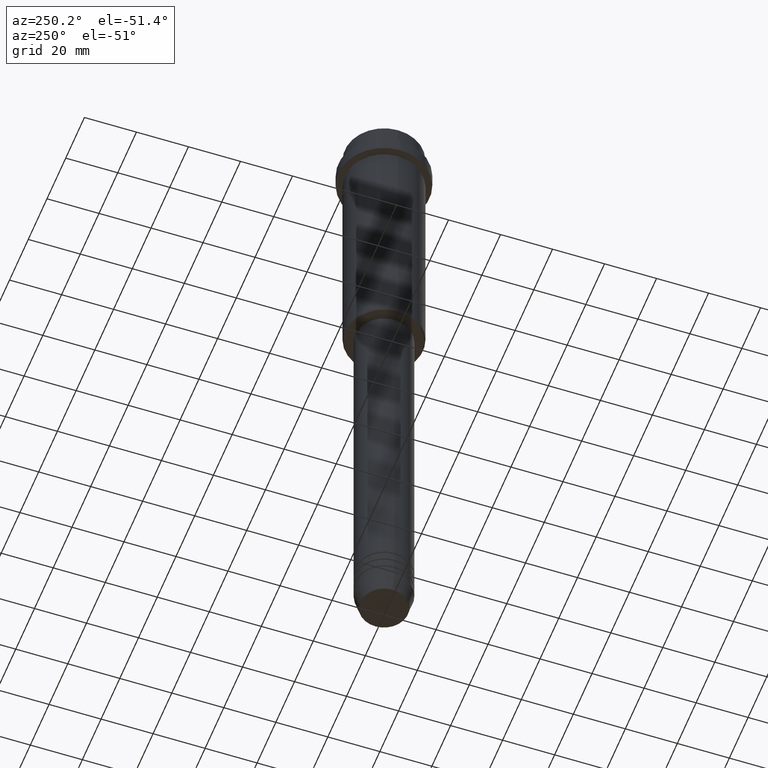
[diagram: clean part render]
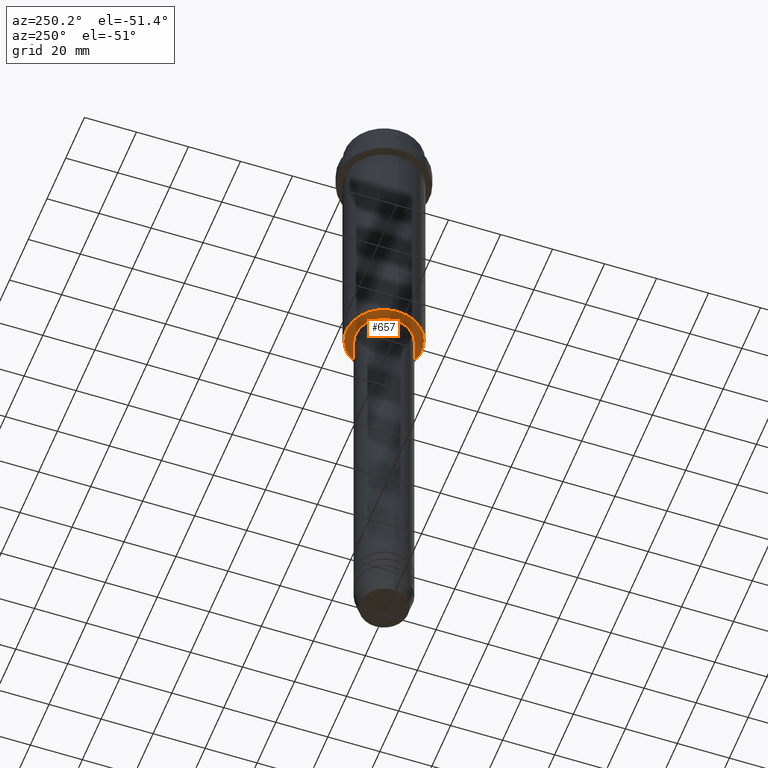
[diagram: same view with one face highlighted and labeled with its STEP entity id]
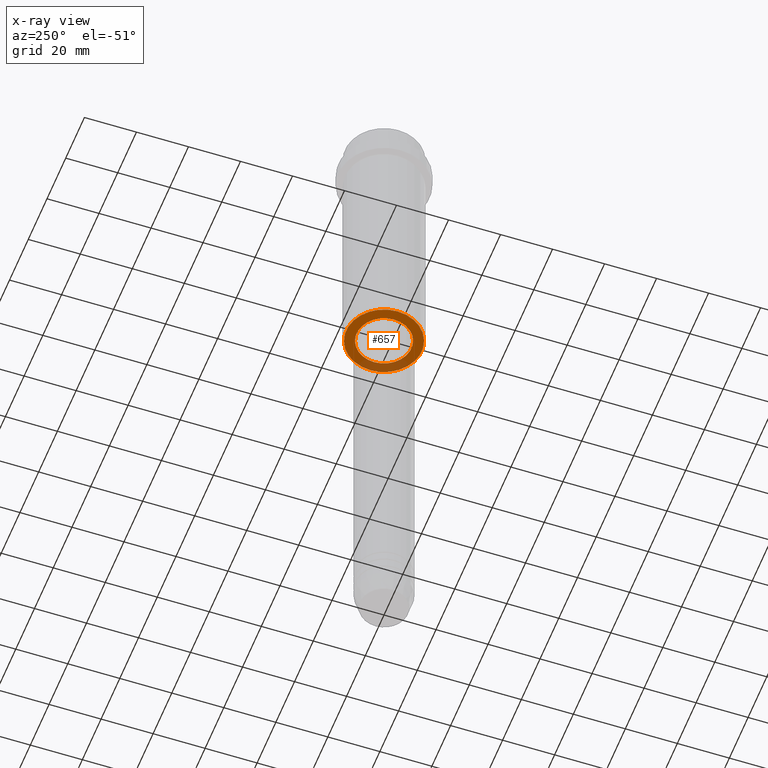
[diagram: x-ray of the same camera — body ghosted, the highlighted face saturated]
A machine part, auxiliary view. The second image highlights one B-rep face of the part: STEP entity #657.
The next image is the same camera in x-ray: the body ghosted, the highlighted face saturated — about 22% of this face is hidden behind the body in this view.
In plain terms, the highlighted planar face has unit normal (0, 0, -1).
Its self-contained STEP definition (entity closure, byte-faithful):
#4 = CARTESIAN_POINT ( 'NONE',  ( 0.000000000000000000, 15.00000000000000000, -105.0000000000000142 ) ) ;
#38 = DIRECTION ( 'NONE',  ( 1.000000000000000000, 0.000000000000000000, 0.000000000000000000 ) ) ;
#80 = CARTESIAN_POINT ( 'NONE',  ( 0.000000000000000000, 0.000000000000000000, -105.0000000000000142 ) ) ;
#88 = AXIS2_PLACEMENT_3D ( 'NONE', #1111, #1334, #38 ) ;
#93 = ORIENTED_EDGE ( 'NONE', *, *, #1332, .T. ) ;
#116 = VERTEX_POINT ( 'NONE', #1194 ) ;
#171 = VERTEX_POINT ( 'NONE', #984 ) ;
#237 = DIRECTION ( 'NONE',  ( -1.000000000000000000, 0.000000000000000000, -0.000000000000000000 ) ) ;
#295 = CARTESIAN_POINT ( 'NONE',  ( 0.000000000000000000, 0.000000000000000000, -105.0000000000000142 ) ) ;
#357 = EDGE_CURVE ( 'NONE', #730, #116, #578, .T. ) ;
#376 = CIRCLE ( 'NONE', #1221, 14.49999999999995559 ) ;
#397 = DIRECTION ( 'NONE',  ( 0.000000000000000000, 0.000000000000000000, -1.000000000000000000 ) ) ;
#431 = FACE_BOUND ( 'NONE', #911, .T. ) ;
#434 = DIRECTION ( 'NONE',  ( 0.000000000000000000, 0.000000000000000000, -1.000000000000000000 ) ) ;
#443 = VERTEX_POINT ( 'NONE', #1364 ) ;
#509 = AXIS2_PLACEMENT_3D ( 'NONE', #295, #715, #599 ) ;
#511 = AXIS2_PLACEMENT_3D ( 'NONE', #4, #434, #237 ) ;
#578 = CIRCLE ( 'NONE', #509, 10.49999999999999289 ) ;
#599 = DIRECTION ( 'NONE',  ( 1.000000000000000000, 0.000000000000000000, 0.000000000000000000 ) ) ;
#606 = DIRECTION ( 'NONE',  ( 0.000000000000000000, 0.000000000000000000, -1.000000000000000000 ) ) ;
#628 = AXIS2_PLACEMENT_3D ( 'NONE', #1262, #606, #1148 ) ;
#657 = ADVANCED_FACE ( 'NONE', ( #982, #431 ), #1399, .T. ) ;
#689 = EDGE_LOOP ( 'NONE', ( #93, #1279 ) ) ;
#715 = DIRECTION ( 'NONE',  ( -0.000000000000000000, -0.000000000000000000, 1.000000000000000000 ) ) ;
#730 = VERTEX_POINT ( 'NONE', #1101 ) ;
#911 = EDGE_LOOP ( 'NONE', ( #1107, #1064 ) ) ;
#982 = FACE_OUTER_BOUND ( 'NONE', #689, .T. ) ;
#984 = CARTESIAN_POINT ( 'NONE',  ( -14.49999999999995559, 1.806354028742343041E-15, -105.0000000000000142 ) ) ;
#1030 = DIRECTION ( 'NONE',  ( -1.000000000000000000, 0.000000000000000000, 0.000000000000000000 ) ) ;
#1064 = ORIENTED_EDGE ( 'NONE', *, *, #357, .T. ) ;
#1080 = CIRCLE ( 'NONE', #628, 14.49999999999995559 ) ;
#1101 = CARTESIAN_POINT ( 'NONE',  ( -10.49999999999999289, 1.285879139104720042E-15, -105.0000000000000142 ) ) ;
#1107 = ORIENTED_EDGE ( 'NONE', *, *, #1130, .T. ) ;
#1111 = CARTESIAN_POINT ( 'NONE',  ( 0.000000000000000000, 0.000000000000000000, -105.0000000000000142 ) ) ;
#1130 = EDGE_CURVE ( 'NONE', #116, #730, #1246, .T. ) ;
#1148 = DIRECTION ( 'NONE',  ( -1.000000000000000000, 0.000000000000000000, 0.000000000000000000 ) ) ;
#1194 = CARTESIAN_POINT ( 'NONE',  ( 10.49999999999999289, 0.000000000000000000, -105.0000000000000142 ) ) ;
#1221 = AXIS2_PLACEMENT_3D ( 'NONE', #80, #397, #1030 ) ;
#1246 = CIRCLE ( 'NONE', #88, 10.49999999999999289 ) ;
#1262 = CARTESIAN_POINT ( 'NONE',  ( 0.000000000000000000, 0.000000000000000000, -105.0000000000000142 ) ) ;
#1279 = ORIENTED_EDGE ( 'NONE', *, *, #1342, .T. ) ;
#1332 = EDGE_CURVE ( 'NONE', #443, #171, #376, .T. ) ;
#1334 = DIRECTION ( 'NONE',  ( -0.000000000000000000, -0.000000000000000000, 1.000000000000000000 ) ) ;
#1342 = EDGE_CURVE ( 'NONE', #171, #443, #1080, .T. ) ;
#1364 = CARTESIAN_POINT ( 'NONE',  ( 14.49999999999995559, 0.000000000000000000, -105.0000000000000142 ) ) ;
#1399 = PLANE ( 'NONE',  #511 ) ;